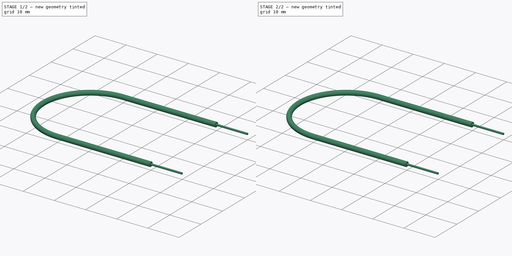
[diagram: build sequence overview — one tinted view per stage of 2, left to right]
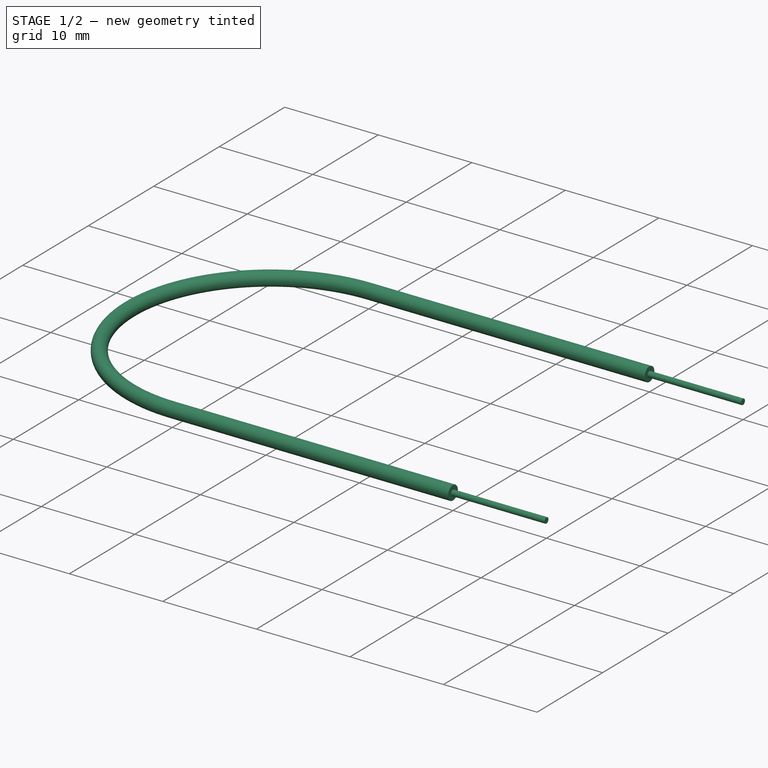
[diagram: stage 1 of 2 — iso view after this stage's code; geometry added in this stage tinted green]
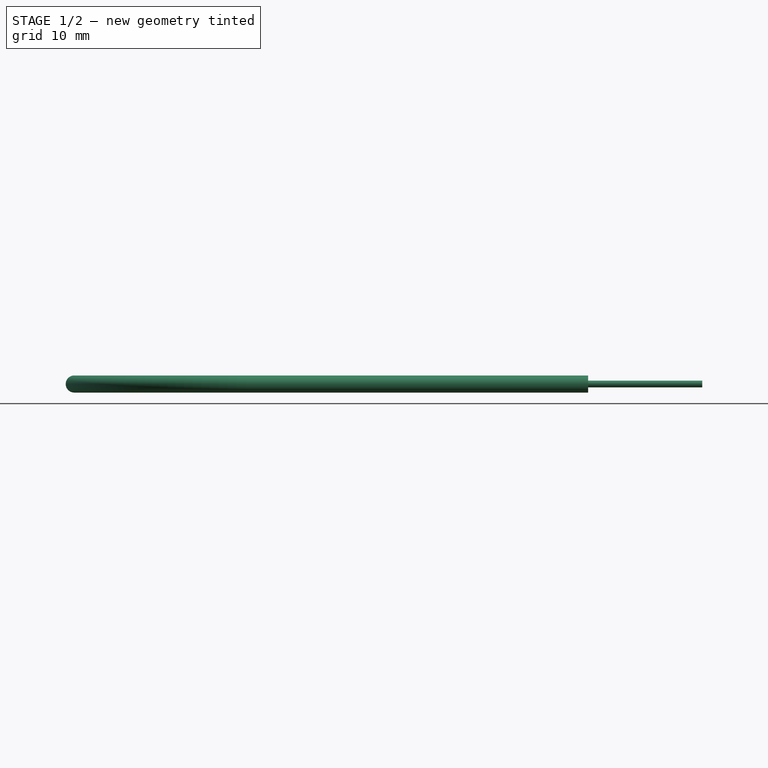
[diagram: stage 1 of 2 — front view after this stage's code; geometry added in this stage tinted green]
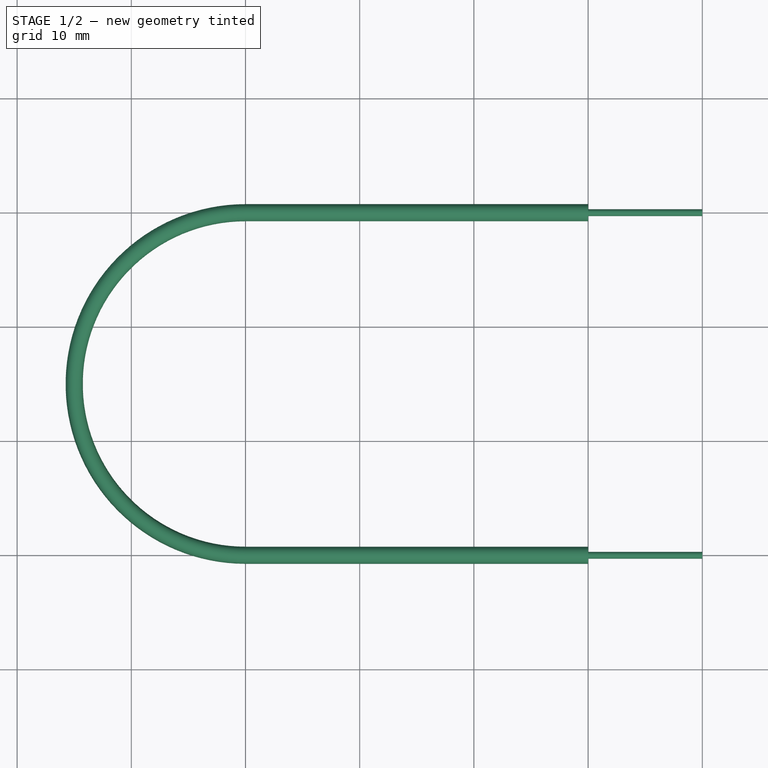
[diagram: stage 1 of 2 — top view after this stage's code; geometry added in this stage tinted green]
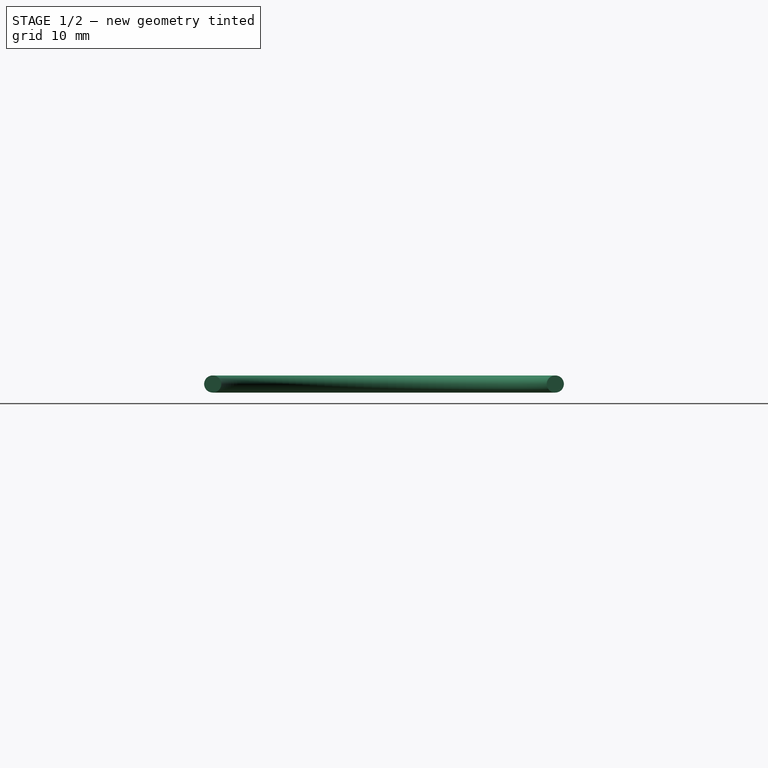
[diagram: stage 1 of 2 — right view after this stage's code; geometry added in this stage tinted green]
FCSTD DOCUMENT  (FreeCAD 0.14R3692 (Git))
Label: ConnectionWire
License: CC-BY 3.0
LicenseURL: http://creativecommons.org/licenses/by/3.0/
objects: Sketcher::SketchObject×4, Part::Sweep×2, Part::MultiFuse×1
note: 7 computed .brp shape members not serialized (recipe doc carries the construction recipe); baked Part::Feature solids carry a one-line shape summary decoded from their .brp

FEATURE [Sketcher::SketchObject] Sketch001  label="CoverPathSketch001"
  sketch-geometry (3):
    g0: LineSegment StartX=0 StartY=0 StartZ=0 EndX=-30 EndY=0 EndZ=0
    g1: ArcOfCircle CenterX=-30 CenterY=15 CenterZ=0 NormalX=0 NormalY=0 NormalZ=1 Radius=15 StartAngle=1.5708 EndAngle=4.71239
    g2: LineSegment StartX=-30 StartY=30 StartZ=0 EndX=0 EndY=30 EndZ=0
  constraints (8):
    c: Horizontal(g0)
    c: Tangent(g0,g1)
    c: Tangent(g1,g2)
    c: Horizontal(g2)
    c: DistanceX(g2) = 30
    c: Radius(g1) = 15
    c: Equal(g2,g0)
    c: Coincident(g0,g-1)
FEATURE [Sketcher::SketchObject] Sketch002  label="CoverSectionSketch002"
  Placement = pos=(0,0,0) rot=(0.57735,0.57735,0.57735;2.0944rad)
  sketch-geometry (1):
    g0: Circle CenterX=0 CenterY=0 CenterZ=0 NormalX=0 NormalY=0 NormalZ=1 Radius=0.75
  constraints (2):
    c: Coincident(g0,g-1)
    c: Radius(g0) = 0.75
FEATURE [Part::Sweep] Sweep  label="CoverSweep"
  Frenet = false
  Sections = -> [Sketch002]
  Solid = true
  Spine = -> Sketch001 [Edge1]
  Transition = 1
FEATURE [Sketcher::SketchObject] Sketch  label="WirePathSketch"
  sketch-geometry (3):
    g0: LineSegment StartX=10 StartY=0 StartZ=0 EndX=-30 EndY=0 EndZ=0
    g1: ArcOfCircle CenterX=-30 CenterY=15 CenterZ=0 NormalX=0 NormalY=0 NormalZ=1 Radius=15 StartAngle=1.5708 EndAngle=4.71239
    g2: LineSegment StartX=-30 StartY=30 StartZ=0 EndX=10 EndY=30 EndZ=0
  constraints (9):
    c: Horizontal(g0)
    c: Tangent(g0,g1)
    c: Tangent(g1,g2)
    c: Horizontal(g2)
    c: DistanceX(g2) = 40
    c: Radius(g1) = 15
    c: Equal(g2,g0)
    c: PointOnObject(g0,g-1)
    c: DistanceX(g-1,g0) = 10
FEATURE [Sketcher::SketchObject] Sketch003  label="WireSectionSketch003"
  Placement = pos=(0,0,0) rot=(0.57735,0.57735,0.57735;2.0944rad)
  sketch-geometry (1):
    g0: Circle CenterX=0 CenterY=0 CenterZ=0 NormalX=0 NormalY=0 NormalZ=1 Radius=0.3
  constraints (2):
    c: Coincident(g0,g-1)
    c: Radius(g0) = 0.3
FEATURE [Part::Sweep] Sweep001
  Frenet = false
  Sections = -> [Sketch003]
  Solid = true
  Spine = -> Sketch [Edge1]
  Transition = 1
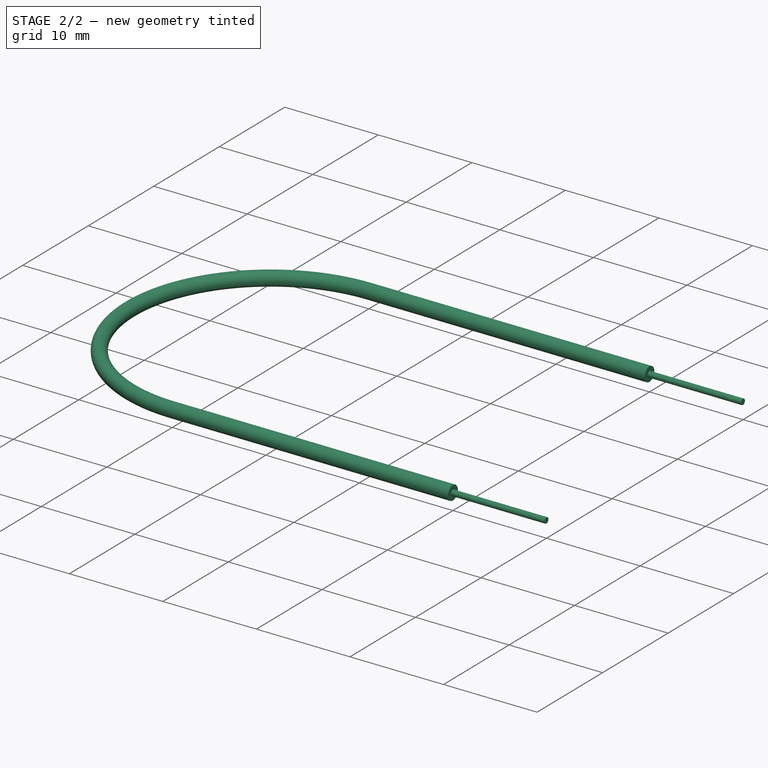
[diagram: stage 2 of 2 — iso view after this stage's code; geometry added in this stage tinted green]
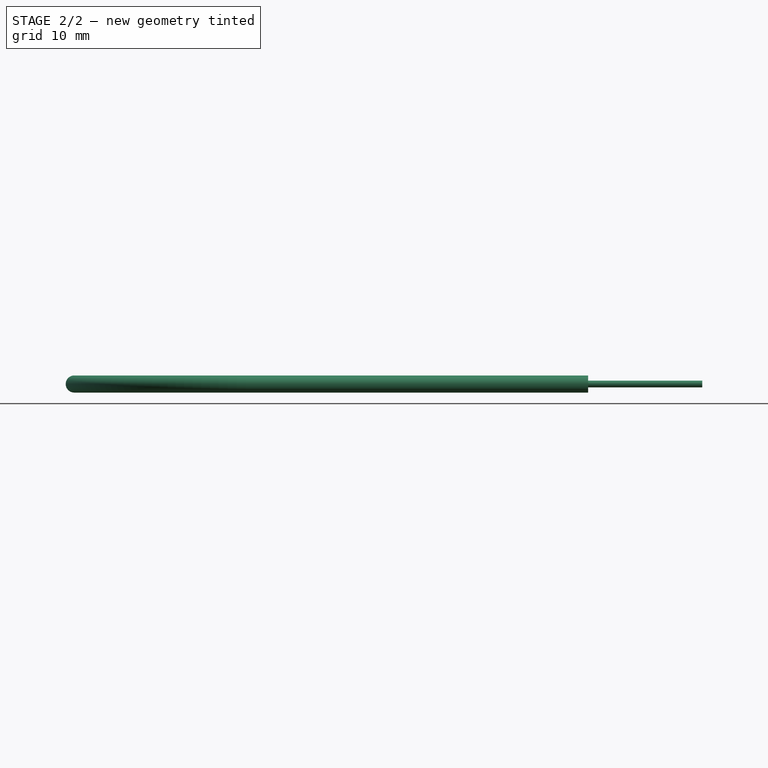
[diagram: stage 2 of 2 — front view after this stage's code; geometry added in this stage tinted green]
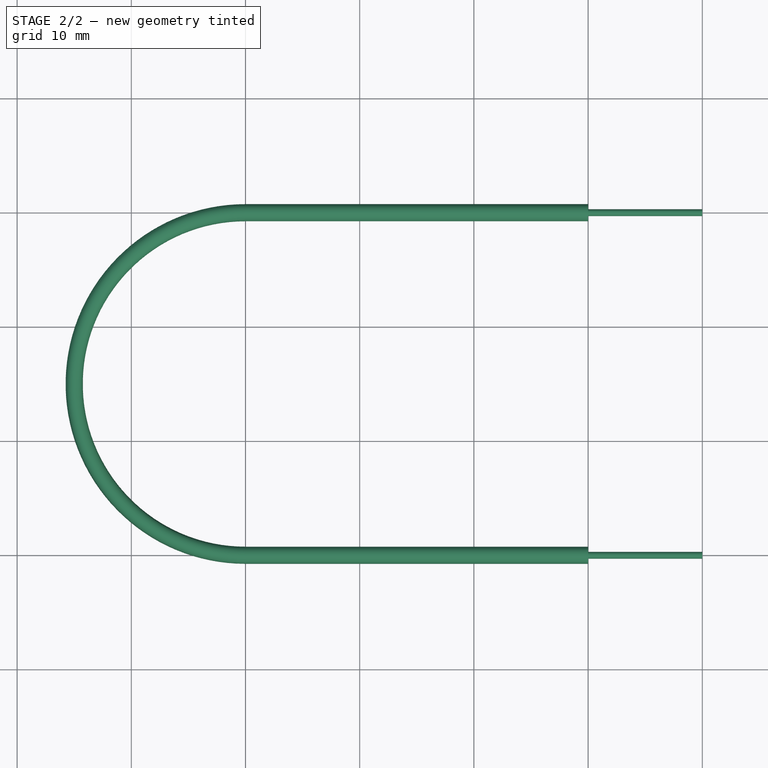
[diagram: stage 2 of 2 — top view after this stage's code; geometry added in this stage tinted green]
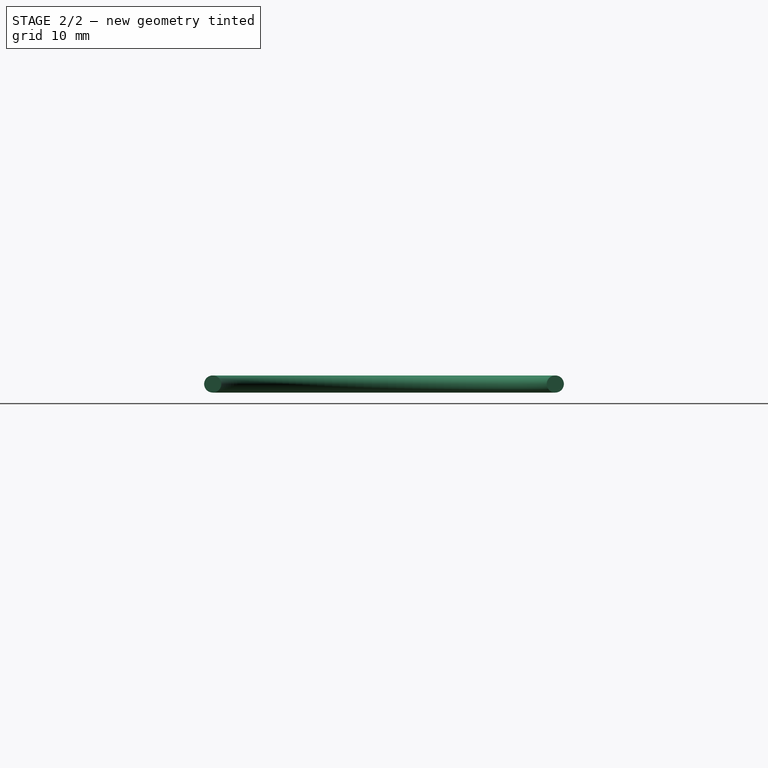
[diagram: stage 2 of 2 — right view after this stage's code; geometry added in this stage tinted green]
FEATURE [Part::MultiFuse] Fusion  label="WireFusion"
  Shapes = -> [Sweep001,Sweep]
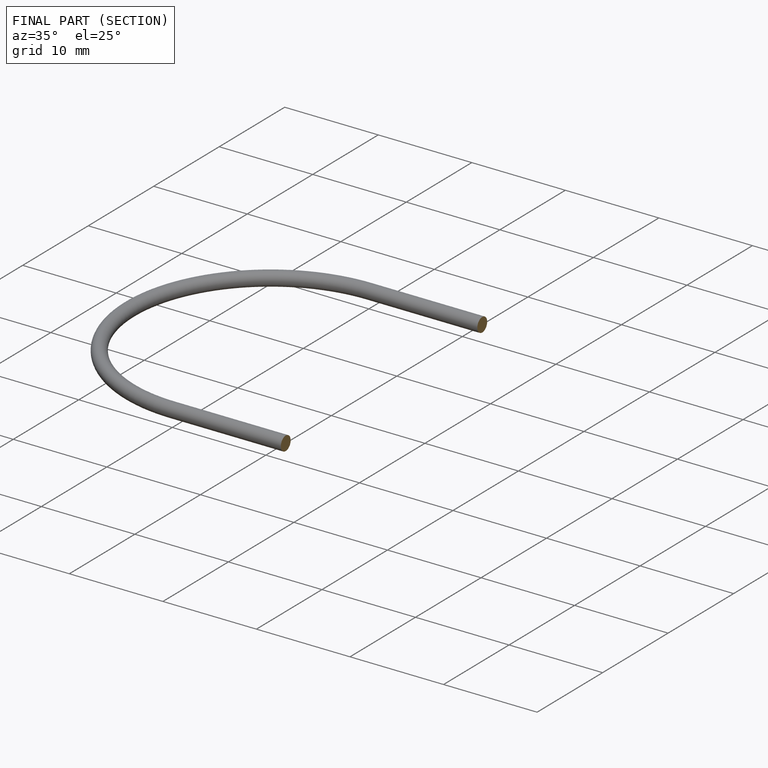
[diagram: finished part — half-section view (interior)]
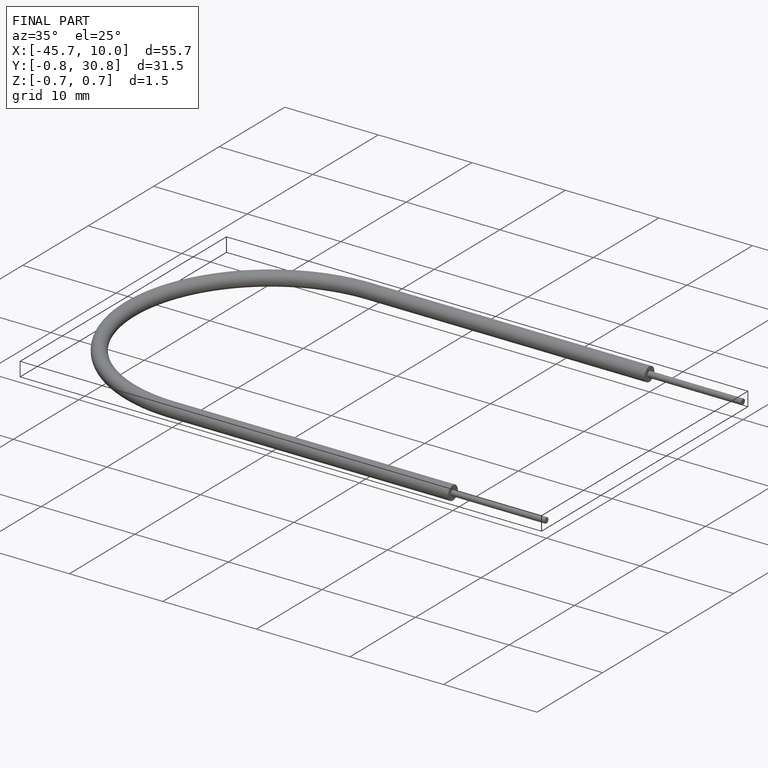
[diagram: finished part — iso view with bounding-box wireframe]
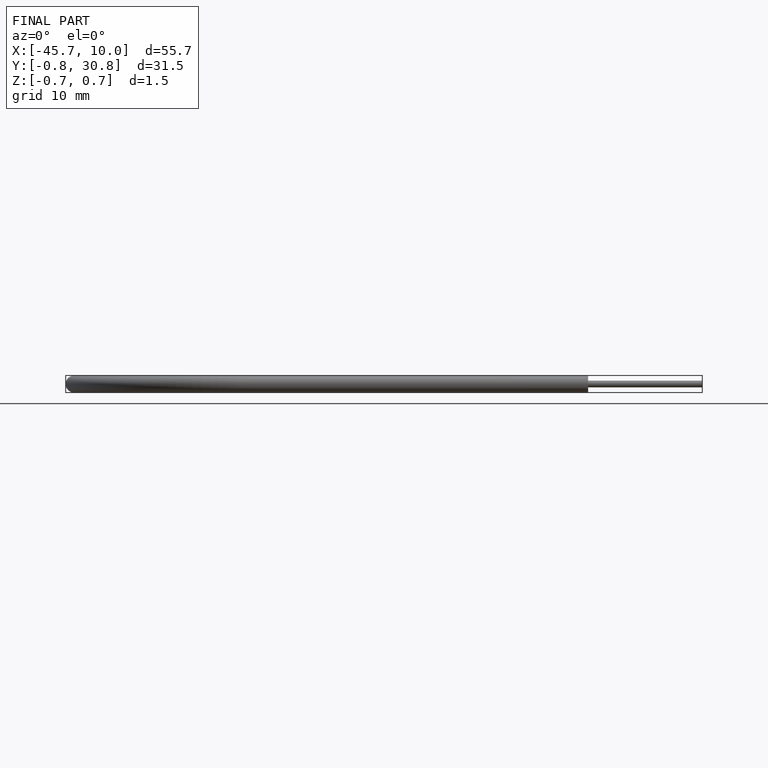
[diagram: finished part — front view with bounding-box wireframe]
